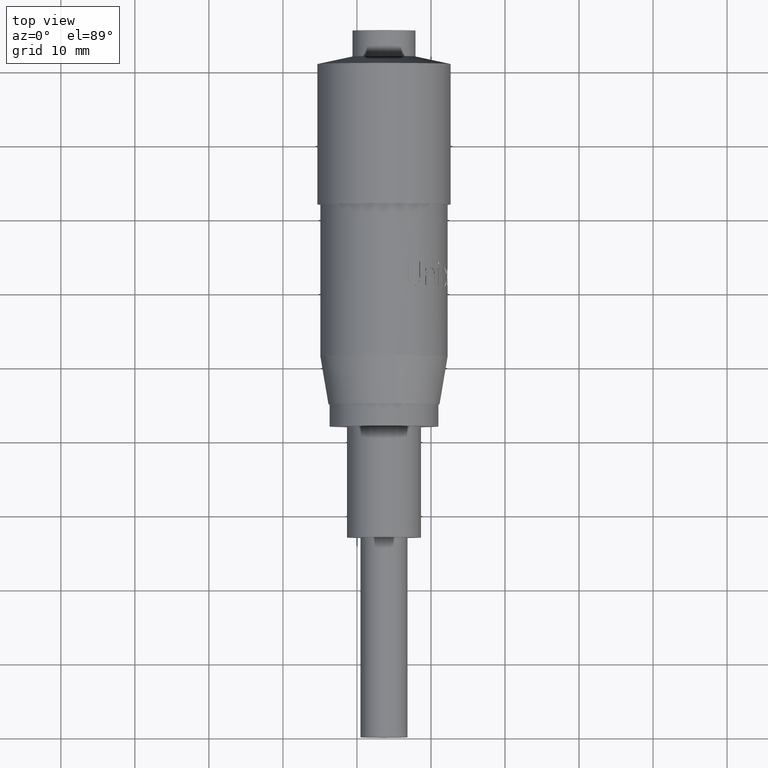
[diagram: clean part render]
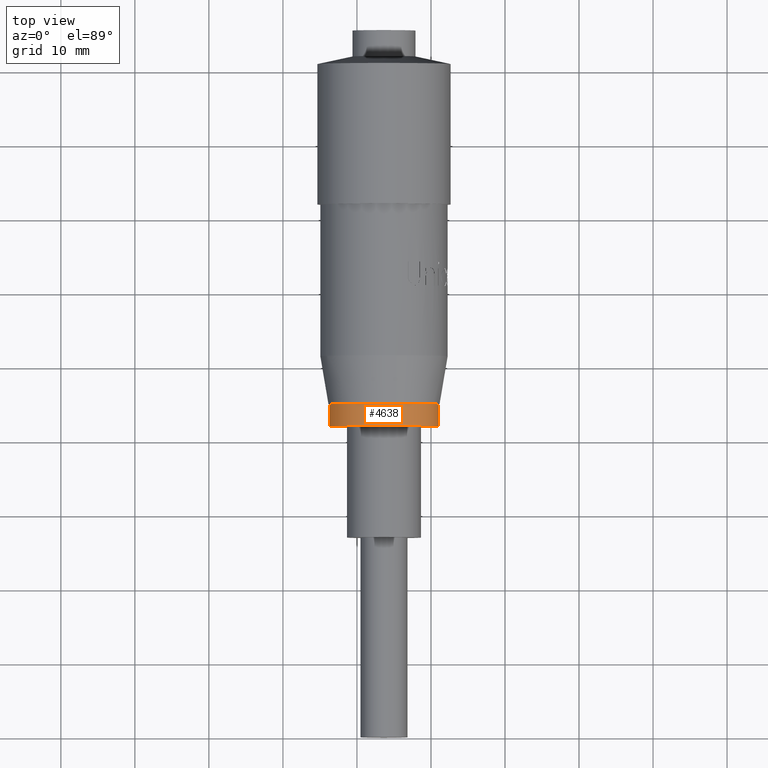
[diagram: same view with one face highlighted and labeled with its STEP entity id]
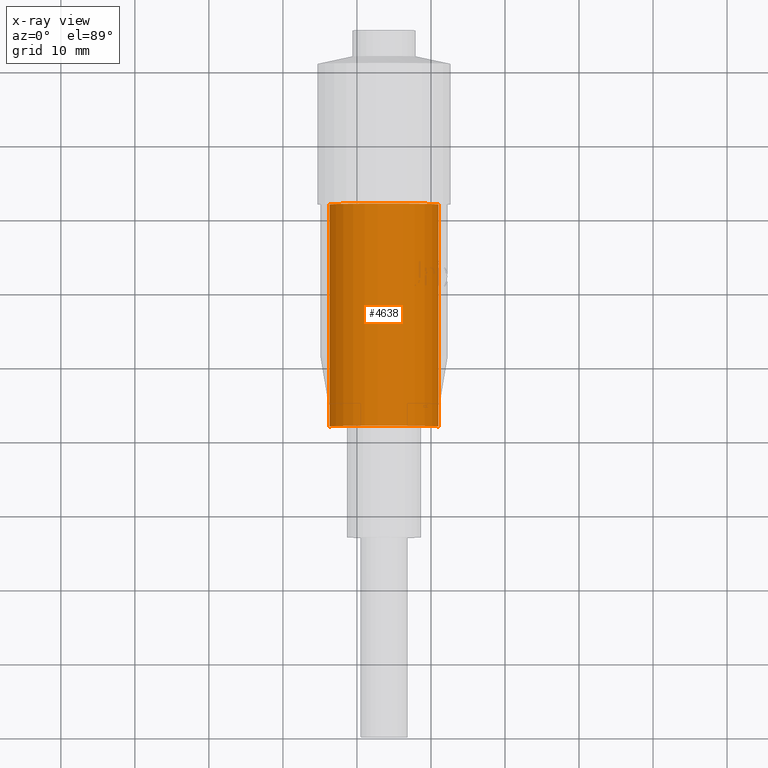
[diagram: x-ray of the same camera — body ghosted, the highlighted face saturated]
A machine part, top view. The second image highlights one B-rep face of the part: STEP entity #4638.
The next image is the same camera in x-ray: the body ghosted, the highlighted face saturated — about 0% of this face is hidden behind the body in this view.
In plain terms, the highlighted cylindrical surface (partial cylindrical patch) has radius 7.35 mm, axis along (-0, 1, -0).
Its self-contained STEP definition (entity closure, byte-faithful):
#58 = AXIS2_PLACEMENT_3D ( 'NONE', #7803, #2491, #8691 ) ;
#163 = VECTOR ( 'NONE', #1642, 1000.000000000000000 ) ;
#337 = DIRECTION ( 'NONE',  ( 7.646944302265110700E-014, 0.0000000000000000000, -1.000000000000000000 ) ) ;
#569 = CYLINDRICAL_SURFACE ( 'NONE', #1660, 7.349999999999998800 ) ;
#659 = ORIENTED_EDGE ( 'NONE', *, *, #4637, .F. ) ;
#720 = CARTESIAN_POINT ( 'NONE',  ( 41.00228258886724600, 14.92618278390013100, 28.97709965591408800 ) ) ;
#788 = VERTEX_POINT ( 'NONE', #9378 ) ;
#792 = DIRECTION ( 'NONE',  ( -1.058937486943297600E-016, 1.000000000000000000, -0.0000000000000000000 ) ) ;
#875 = VERTEX_POINT ( 'NONE', #8599 ) ;
#1068 = DIRECTION ( 'NONE',  ( -1.058937486943297600E-016, 1.000000000000000000, -0.0000000000000000000 ) ) ;
#1642 = DIRECTION ( 'NONE',  ( -1.058937486943297600E-016, 1.000000000000000000, -0.0000000000000000000 ) ) ;
#1660 = AXIS2_PLACEMENT_3D ( 'NONE', #1679, #792, #11428 ) ;
#1679 = CARTESIAN_POINT ( 'NONE',  ( 33.65296289245996100, 68.06720585310775100, 28.87709965591409000 ) ) ;
#1691 = DIRECTION ( 'NONE',  ( -1.058937486943297600E-016, 1.000000000000000000, -0.0000000000000000000 ) ) ;
#1847 = EDGE_CURVE ( 'NONE', #788, #7756, #4221, .T. ) ;
#2262 = ORIENTED_EDGE ( 'NONE', *, *, #1847, .F. ) ;
#2491 = DIRECTION ( 'NONE',  ( -0.0000000000000000000, -1.000000000000000000, -0.0000000000000000000 ) ) ;
#3071 = LINE ( 'NONE', #8683, #163 ) ;
#3217 = VECTOR ( 'NONE', #9781, 1000.000000000000000 ) ;
#3288 = EDGE_LOOP ( 'NONE', ( #6095, #8272, #7254, #659, #4194, #7726, #2262, #4616 ) ) ;
#3360 = EDGE_CURVE ( 'NONE', #6952, #5884, #10366, .T. ) ;
#3367 = FACE_OUTER_BOUND ( 'NONE', #3288, .T. ) ;
#3501 = AXIS2_PLACEMENT_3D ( 'NONE', #10928, #5628, #337 ) ;
#3603 = DIRECTION ( 'NONE',  ( -1.058937486943297600E-016, 1.000000000000000000, -0.0000000000000000000 ) ) ;
#4194 = ORIENTED_EDGE ( 'NONE', *, *, #8149, .F. ) ;
#4204 = VECTOR ( 'NONE', #1068, 1000.000000000000000 ) ;
#4221 = CIRCLE ( 'NONE', #8442, 7.350000000000002300 ) ;
#4254 = VERTEX_POINT ( 'NONE', #10202 ) ;
#4480 = CIRCLE ( 'NONE', #9709, 7.349999999999998800 ) ;
#4609 = CARTESIAN_POINT ( 'NONE',  ( 41.00228258886724600, 39.67618278390013100, 28.97709965591409200 ) ) ;
#4616 = ORIENTED_EDGE ( 'NONE', *, *, #6977, .F. ) ;
#4637 = EDGE_CURVE ( 'NONE', #8988, #6952, #10172, .T. ) ;
#4638 = ADVANCED_FACE ( 'NONE', ( #3367 ), #569, .T. ) ;
#5148 = CARTESIAN_POINT ( 'NONE',  ( 41.00296289245996900, 14.92618278390013100, 28.87709965591409000 ) ) ;
#5241 = CARTESIAN_POINT ( 'NONE',  ( 41.00296289245996200, 42.02618278390013300, 28.87709965591409000 ) ) ;
#5429 = VECTOR ( 'NONE', #6974, 1000.000000000000000 ) ;
#5628 = DIRECTION ( 'NONE',  ( -0.0000000000000000000, 1.000000000000000000, 0.0000000000000000000 ) ) ;
#5860 = LINE ( 'NONE', #7985, #3217 ) ;
#5884 = VERTEX_POINT ( 'NONE', #5148 ) ;
#6095 = ORIENTED_EDGE ( 'NONE', *, *, #10990, .T. ) ;
#6548 = LINE ( 'NONE', #9036, #4204 ) ;
#6796 = VERTEX_POINT ( 'NONE', #7409 ) ;
#6952 = VERTEX_POINT ( 'NONE', #720 ) ;
#6974 = DIRECTION ( 'NONE',  ( 1.058937486943297600E-016, -1.000000000000000000, 0.0000000000000000000 ) ) ;
#6977 = EDGE_CURVE ( 'NONE', #4254, #788, #3071, .T. ) ;
#6985 = CARTESIAN_POINT ( 'NONE',  ( 33.65296289245996100, 42.02618278390013300, 28.87709965591409000 ) ) ;
#7254 = ORIENTED_EDGE ( 'NONE', *, *, #3360, .F. ) ;
#7409 = CARTESIAN_POINT ( 'NONE',  ( 41.00296289245996900, 12.02618278390013300, 28.87709965591409000 ) ) ;
#7726 = ORIENTED_EDGE ( 'NONE', *, *, #9876, .T. ) ;
#7756 = VERTEX_POINT ( 'NONE', #5241 ) ;
#7803 = CARTESIAN_POINT ( 'NONE',  ( 33.65296289245996100, 39.67618278390013100, 28.87709965591409000 ) ) ;
#7875 = DIRECTION ( 'NONE',  ( -1.000000000000000000, 0.0000000000000000000, 0.0000000000000000000 ) ) ;
#7985 = CARTESIAN_POINT ( 'NONE',  ( 41.00296289245996200, 68.06720585310775100, 28.87709965591409000 ) ) ;
#8149 = EDGE_CURVE ( 'NONE', #875, #8988, #9721, .T. ) ;
#8272 = ORIENTED_EDGE ( 'NONE', *, *, #10719, .T. ) ;
#8442 = AXIS2_PLACEMENT_3D ( 'NONE', #6985, #1691, #7875 ) ;
#8599 = CARTESIAN_POINT ( 'NONE',  ( 41.00296289245996200, 39.67618278390013100, 28.87709965591409000 ) ) ;
#8683 = CARTESIAN_POINT ( 'NONE',  ( 26.30296289245996300, 68.06720585310775100, 28.87709965591409000 ) ) ;
#8691 = DIRECTION ( 'NONE',  ( -1.538829532431126300E-013, 0.0000000000000000000, 1.000000000000000000 ) ) ;
#8901 = CARTESIAN_POINT ( 'NONE',  ( 33.65296289245996800, 12.02618278390013300, 28.87709965591409000 ) ) ;
#8988 = VERTEX_POINT ( 'NONE', #4609 ) ;
#9036 = CARTESIAN_POINT ( 'NONE',  ( 41.00296289245996200, 68.06720585310775100, 28.87709965591409000 ) ) ;
#9378 = CARTESIAN_POINT ( 'NONE',  ( 26.30296289245995900, 42.02618278390013300, 28.87709965591409000 ) ) ;
#9573 = CARTESIAN_POINT ( 'NONE',  ( 41.00228258886723900, 68.06720585310775100, 28.97709965591409500 ) ) ;
#9709 = AXIS2_PLACEMENT_3D ( 'NONE', #8901, #3603, #9803 ) ;
#9721 = CIRCLE ( 'NONE', #58, 7.350000000000002300 ) ;
#9781 = DIRECTION ( 'NONE',  ( -1.058937486943297600E-016, 1.000000000000000000, -0.0000000000000000000 ) ) ;
#9803 = DIRECTION ( 'NONE',  ( -1.000000000000000000, 0.0000000000000000000, 0.0000000000000000000 ) ) ;
#9876 = EDGE_CURVE ( 'NONE', #875, #7756, #6548, .T. ) ;
#10172 = LINE ( 'NONE', #9573, #5429 ) ;
#10202 = CARTESIAN_POINT ( 'NONE',  ( 26.30296289245997000, 12.02618278390013300, 28.87709965591409000 ) ) ;
#10366 = CIRCLE ( 'NONE', #3501, 7.349999999999998800 ) ;
#10719 = EDGE_CURVE ( 'NONE', #6796, #5884, #5860, .T. ) ;
#10928 = CARTESIAN_POINT ( 'NONE',  ( 33.65296289245996800, 14.92618278390013100, 28.87709965591409000 ) ) ;
#10990 = EDGE_CURVE ( 'NONE', #4254, #6796, #4480, .T. ) ;
#11428 = DIRECTION ( 'NONE',  ( -1.000000000000000000, 0.0000000000000000000, 0.0000000000000000000 ) ) ;